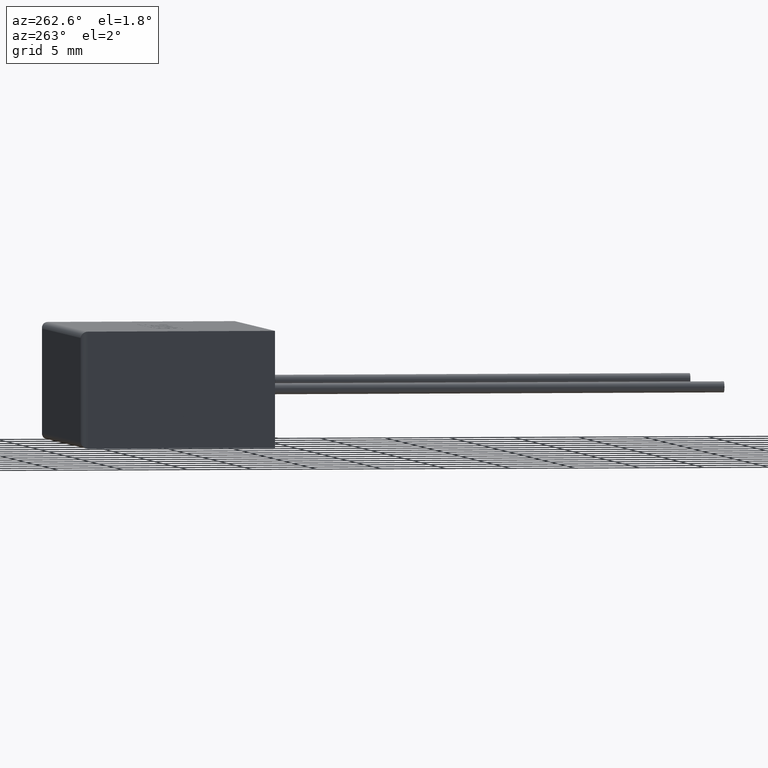
[diagram: clean part render]
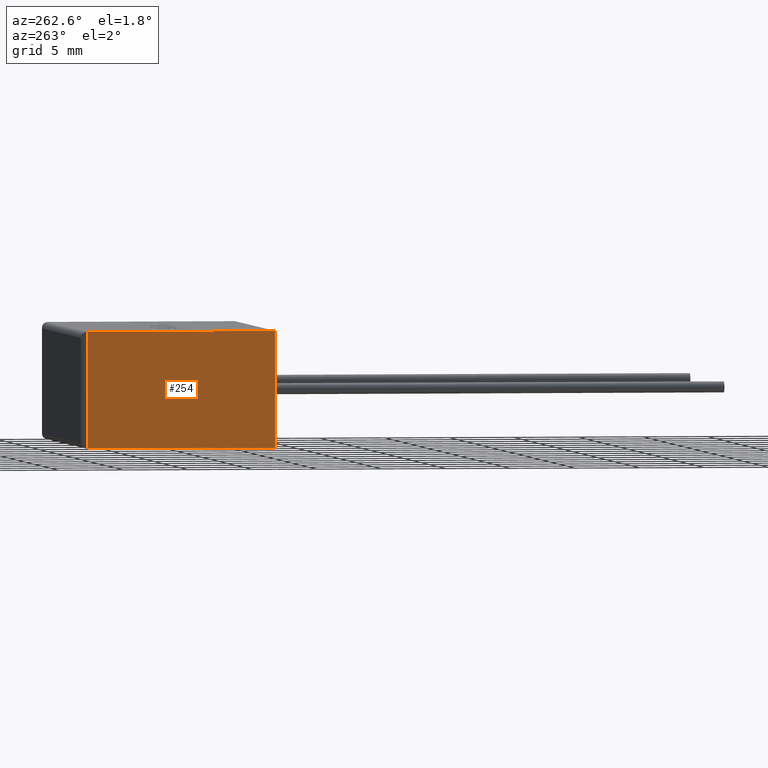
[diagram: same view with one face highlighted and labeled with its STEP entity id]
A machine part, auxiliary view. The second image highlights one B-rep face of the part: STEP entity #254.
In plain terms, the highlighted planar face has unit normal (1, 0, 0).
Its self-contained STEP definition (entity closure, byte-faithful):
#27 = ORIENTED_EDGE ( 'NONE', *, *, #2137, .F. ) ;
#43 = CARTESIAN_POINT ( 'NONE',  ( 0.0000000000000000000, 14.49999999999999800, 9.000000000000000000 ) ) ;
#66 = DIRECTION ( 'NONE',  ( -0.0000000000000000000, -1.000000000000000000, -0.0000000000000000000 ) ) ;
#124 = VERTEX_POINT ( 'NONE', #1523 ) ;
#125 = CARTESIAN_POINT ( 'NONE',  ( 0.0000000000000000000, 0.0000000000000000000, 0.0000000000000000000 ) ) ;
#223 = DIRECTION ( 'NONE',  ( 1.000000000000000000, 0.0000000000000000000, 0.0000000000000000000 ) ) ;
#254 = ADVANCED_FACE ( 'NONE', ( #1283 ), #2304, .F. ) ;
#372 = CARTESIAN_POINT ( 'NONE',  ( 0.0000000000000000000, 0.0000000000000000000, 0.0000000000000000000 ) ) ;
#386 = EDGE_CURVE ( 'NONE', #420, #124, #2143, .T. ) ;
#420 = VERTEX_POINT ( 'NONE', #1950 ) ;
#467 = CARTESIAN_POINT ( 'NONE',  ( 0.0000000000000000000, 0.0000000000000000000, 9.000000000000000000 ) ) ;
#537 = EDGE_CURVE ( 'NONE', #1521, #2190, #585, .T. ) ;
#565 = CARTESIAN_POINT ( 'NONE',  ( 0.0000000000000000000, 0.0000000000000000000, 9.000000000000000000 ) ) ;
#574 = CARTESIAN_POINT ( 'NONE',  ( 0.0000000000000000000, 14.49999999999999800, 0.0000000000000000000 ) ) ;
#585 = LINE ( 'NONE', #125, #1171 ) ;
#605 = DIRECTION ( 'NONE',  ( 0.0000000000000000000, 0.0000000000000000000, -1.000000000000000000 ) ) ;
#697 = LINE ( 'NONE', #565, #1537 ) ;
#749 = VECTOR ( 'NONE', #1390, 1000.000000000000000 ) ;
#947 = ORIENTED_EDGE ( 'NONE', *, *, #386, .F. ) ;
#1073 = EDGE_LOOP ( 'NONE', ( #947, #2004, #2311, #27 ) ) ;
#1153 = CARTESIAN_POINT ( 'NONE',  ( 0.0000000000000000000, 0.0000000000000000000, 9.000000000000000000 ) ) ;
#1171 = VECTOR ( 'NONE', #1286, 1000.000000000000000 ) ;
#1283 = FACE_OUTER_BOUND ( 'NONE', #1073, .T. ) ;
#1286 = DIRECTION ( 'NONE',  ( -0.0000000000000000000, -1.000000000000000000, -0.0000000000000000000 ) ) ;
#1390 = DIRECTION ( 'NONE',  ( 0.0000000000000000000, 0.0000000000000000000, -1.000000000000000000 ) ) ;
#1399 = AXIS2_PLACEMENT_3D ( 'NONE', #1153, #223, #605 ) ;
#1521 = VERTEX_POINT ( 'NONE', #574 ) ;
#1523 = CARTESIAN_POINT ( 'NONE',  ( 0.0000000000000000000, 0.0000000000000000000, 9.000000000000000000 ) ) ;
#1537 = VECTOR ( 'NONE', #2314, 1000.000000000000000 ) ;
#1670 = EDGE_CURVE ( 'NONE', #420, #1521, #1707, .T. ) ;
#1707 = LINE ( 'NONE', #43, #749 ) ;
#1950 = CARTESIAN_POINT ( 'NONE',  ( 0.0000000000000000000, 14.49999999999999800, 9.000000000000000000 ) ) ;
#2004 = ORIENTED_EDGE ( 'NONE', *, *, #1670, .T. ) ;
#2053 = VECTOR ( 'NONE', #66, 1000.000000000000000 ) ;
#2137 = EDGE_CURVE ( 'NONE', #124, #2190, #697, .T. ) ;
#2143 = LINE ( 'NONE', #467, #2053 ) ;
#2190 = VERTEX_POINT ( 'NONE', #372 ) ;
#2304 = PLANE ( 'NONE',  #1399 ) ;
#2311 = ORIENTED_EDGE ( 'NONE', *, *, #537, .T. ) ;
#2314 = DIRECTION ( 'NONE',  ( -0.0000000000000000000, -0.0000000000000000000, -1.000000000000000000 ) ) ;